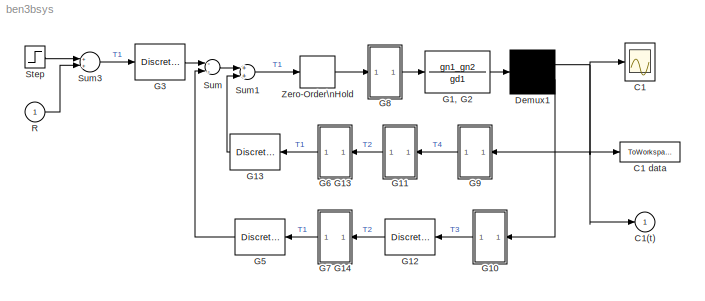
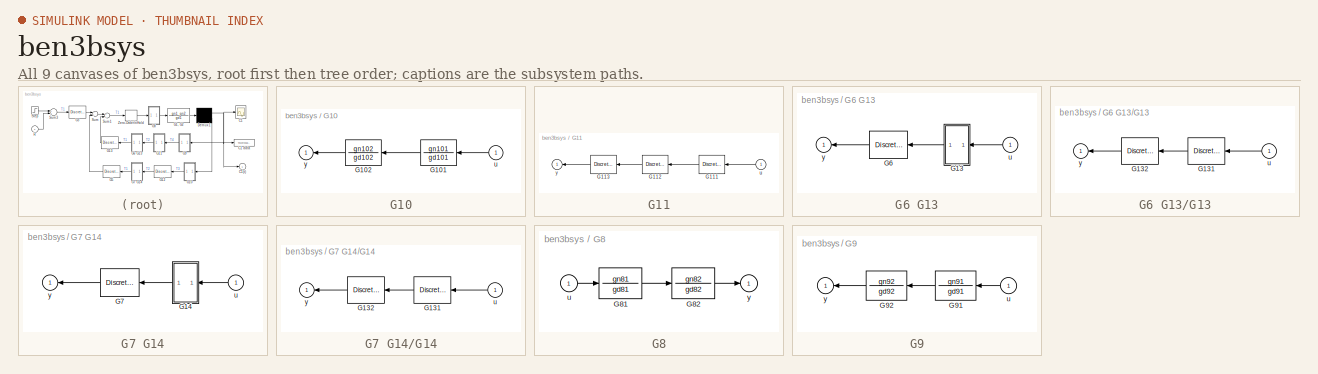
[diagram: thumbnail index - all 9 canvases of the model, root first then tree order]
MODEL ben3bsys
KIND model
CONFIG PreLoadFcn = ben3bdat
BLOCK [Scope] C1
  DataFormat = Array
  LimitDataPoints = off
  NumInputPorts = 1
  Ports = [1]
  TickLabels = on
  YMax = 1.5
  YMin = 0
BLOCK [ToWorkspace] C1 data
  MaxDataPoints = 20000
  SampleTime = -1
  SaveFormat = Array
  VariableName = C1_data
BLOCK [Outport] C1(t)
  IconDisplay = Port number
  InitialOutput = 0
BLOCK [Demux] Demux1
  Outputs = 2
  Ports = [1, 2]
BLOCK [TransferFcn] G1, G2
  Denominator = gd1
  Numerator = gn1_gn2
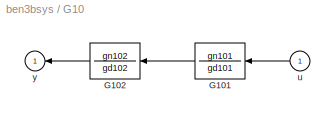
BLOCK [SubSystem] G10
  MinAlgLoopOccurrences = off
  Ports = [1, 1]
  PropExecContextAcrossSSBoundary = on
  RTWSystemCode = Auto
  TreatAsAtomicUnit = off
BLOCK [TransferFcn] G10/G101
  Denominator = gd101
  Numerator = gn101
BLOCK [TransferFcn] G10/G102
  Denominator = gd102
  Numerator = gn102
BLOCK [Inport] G10/u
  IconDisplay = Port number
  LatchInput = off
  Port = 1
BLOCK [Outport] G10/y
  IconDisplay = Port number
  InitialOutput = 0
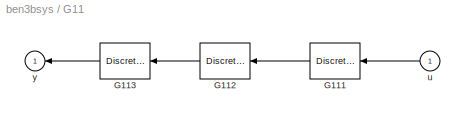
BLOCK [SubSystem] G11
  MinAlgLoopOccurrences = off
  Ports = [1, 1]
  PropExecContextAcrossSSBoundary = on
  RTWSystemCode = Auto
  TreatAsAtomicUnit = off
BLOCK [DiscreteTransferFcn] G11/G111
  Denominator = gd111
  Numerator = gn111
  SampleTime = [T4,offT4]
BLOCK [DiscreteTransferFcn] G11/G112
  Denominator = gd112
  Numerator = gn112
  SampleTime = [T4,offT4]
BLOCK [DiscreteTransferFcn] G11/G113
  Denominator = gd113
  Numerator = gn113
  SampleTime = [T4,offT4]
BLOCK [Inport] G11/u
  IconDisplay = Port number
  LatchInput = off
  Port = 1
BLOCK [Outport] G11/y
  IconDisplay = Port number
  InitialOutput = 0
BLOCK [DiscreteTransferFcn] G12
  Denominator = gd12
  Numerator = gn12
  SampleTime = [T3,offT3]
BLOCK [DiscreteTransferFcn] G13
  Denominator = gd4
  Numerator = gn4
  SampleTime = [T1,offT1]
BLOCK [DiscreteTransferFcn] G3
  Denominator = gd3
  Numerator = gn3
  SampleTime = [T1,offT1]
BLOCK [DiscreteTransferFcn] G5
  Denominator = gd5
  Numerator = gn5
  SampleTime = [T1,offT1]
BLOCK [SubSystem] G6 G13
  MinAlgLoopOccurrences = off
  Ports = [1, 1]
  PropExecContextAcrossSSBoundary = on
  RTWSystemCode = Auto
  TreatAsAtomicUnit = off
BLOCK [SubSystem] G6 G13/G13
  MinAlgLoopOccurrences = off
  Ports = [1, 1]
  PropExecContextAcrossSSBoundary = on
  RTWSystemCode = Auto
  TreatAsAtomicUnit = off
BLOCK [DiscreteTransferFcn] G6 G13/G13/G131
  Denominator = gd131
  Numerator = gn131
  SampleTime = [T2,offT2]
BLOCK [DiscreteTransferFcn] G6 G13/G13/G132
  Denominator = gd132
  Numerator = gn132
  SampleTime = [T2,offT2]
BLOCK [Inport] G6 G13/G13/u
  IconDisplay = Port number
  LatchInput = off
  Port = 1
BLOCK [Outport] G6 G13/G13/y
  IconDisplay = Port number
  InitialOutput = 0
BLOCK [DiscreteTransferFcn] G6 G13/G6
  Denominator = gd6
  Numerator = gn6
  SampleTime = [T2,offT2]
BLOCK [Inport] G6 G13/u
  IconDisplay = Port number
  LatchInput = off
  Port = 1
BLOCK [Outport] G6 G13/y
  IconDisplay = Port number
  InitialOutput = 0
BLOCK [SubSystem] G7 G14
  MinAlgLoopOccurrences = off
  Ports = [1, 1]
  PropExecContextAcrossSSBoundary = on
  RTWSystemCode = Auto
  TreatAsAtomicUnit = off
BLOCK [SubSystem] G7 G14/G14
  MinAlgLoopOccurrences = off
  Ports = [1, 1]
  PropExecContextAcrossSSBoundary = on
  RTWSystemCode = Auto
  TreatAsAtomicUnit = off
BLOCK [DiscreteTransferFcn] G7 G14/G14/G131
  Denominator = gd131
  Numerator = gn131
  SampleTime = [T2,offT2]
BLOCK [DiscreteTransferFcn] G7 G14/G14/G132
  Denominator = gd132
  Numerator = gn132
  SampleTime = [T2,offT2]
BLOCK [Inport] G7 G14/G14/u
  IconDisplay = Port number
  LatchInput = off
  Port = 1
BLOCK [Outport] G7 G14/G14/y
  IconDisplay = Port number
  InitialOutput = 0
BLOCK [DiscreteTransferFcn] G7 G14/G7
  Denominator = gd7
  Numerator = gn7
  SampleTime = [T2,offT2]
BLOCK [Inport] G7 G14/u
  IconDisplay = Port number
  LatchInput = off
  Port = 1
BLOCK [Outport] G7 G14/y
  IconDisplay = Port number
  InitialOutput = 0
BLOCK [SubSystem] G8
  MinAlgLoopOccurrences = off
  Ports = [1, 1]
  PropExecContextAcrossSSBoundary = on
  RTWSystemCode = Auto
  TreatAsAtomicUnit = off
BLOCK [TransferFcn] G8/G81
  Denominator = gd81
  Numerator = gn81
BLOCK [TransferFcn] G8/G82
  Denominator = gd82
  Numerator = gn82
BLOCK [Inport] G8/u
  IconDisplay = Port number
  LatchInput = off
  Port = 1
BLOCK [Outport] G8/y
  IconDisplay = Port number
  InitialOutput = 0
BLOCK [SubSystem] G9
  MinAlgLoopOccurrences = off
  Ports = [1, 1]
  PropExecContextAcrossSSBoundary = on
  RTWSystemCode = Auto
  TreatAsAtomicUnit = off
BLOCK [TransferFcn] G9/G91
  Denominator = gd91
  Numerator = gn91
BLOCK [TransferFcn] G9/G92
  Denominator = gd92
  Numerator = gn92
BLOCK [Inport] G9/u
  IconDisplay = Port number
  LatchInput = off
  Port = 1
BLOCK [Outport] G9/y
  IconDisplay = Port number
  InitialOutput = 0
BLOCK [Inport] R
  IconDisplay = Port number
  LatchInput = off
  Port = 1
BLOCK [Step] Step
  SampleTime = 0
  Time = 0
BLOCK [Sum] Sum
  Inputs = --
  Ports = [2, 1]
BLOCK [Sum] Sum1
  Inputs = 2
  Ports = [2, 1]
BLOCK [Sum] Sum3
  Ports = [2, 1]
BLOCK [ZeroOrderHold] Zero-Order\nHold
  SampleTime = [T1,offZOH]
NET Demux1:1 -> C1 data:1, C1(t):1, C1:1, G9:1
LINE Demux1:2 -> G10:1
LINE G1, G2:1 -> Demux1:1
LINE G10/G101:1 -> G10/G102:1
LINE G10/G102:1 -> G10/y:1
LINE G10/u:1 -> G10/G101:1
LINE G10:1 -> G12:1
LINE G11/G111:1 -> G11/G112:1
LINE G11/G112:1 -> G11/G113:1
LINE G11/G113:1 -> G11/y:1
LINE G11/u:1 -> G11/G111:1
LINE G11:1 -> G6 G13:1
LINE G12:1 -> G7 G14:1
LINE G13:1 -> Sum1:2
LINE G3:1 -> Sum:1
LINE G5:1 -> Sum:2
LINE G6 G13/G13/G131:1 -> G6 G13/G13/G132:1
LINE G6 G13/G13/G132:1 -> G6 G13/G13/y:1
LINE G6 G13/G13/u:1 -> G6 G13/G13/G131:1
LINE G6 G13/G13:1 -> G6 G13/G6:1
LINE G6 G13/G6:1 -> G6 G13/y:1
LINE G6 G13/u:1 -> G6 G13/G13:1
LINE G6 G13:1 -> G13:1
LINE G7 G14/G14/G131:1 -> G7 G14/G14/G132:1
LINE G7 G14/G14/G132:1 -> G7 G14/G14/y:1
LINE G7 G14/G14/u:1 -> G7 G14/G14/G131:1
LINE G7 G14/G14:1 -> G7 G14/G7:1
LINE G7 G14/G7:1 -> G7 G14/y:1
LINE G7 G14/u:1 -> G7 G14/G14:1
LINE G7 G14:1 -> G5:1
LINE G8/G81:1 -> G8/G82:1
LINE G8/G82:1 -> G8/y:1
LINE G8/u:1 -> G8/G81:1
LINE G8:1 -> G1, G2:1
LINE G9/G91:1 -> G9/G92:1
LINE G9/G92:1 -> G9/y:1
LINE G9/u:1 -> G9/G91:1
LINE G9:1 -> G11:1
LINE R:1 -> Sum3:2
LINE Step:1 -> Sum3:1
LINE Sum1:1 -> Zero-Order\nHold:1
LINE Sum3:1 -> G3:1
LINE Sum:1 -> Sum1:1
LINE Zero-Order\nHold:1 -> G8:1
note: NET lines group one-source signal fan-out (src -> all destinations, sorted); 1:1 wires keep LINE
